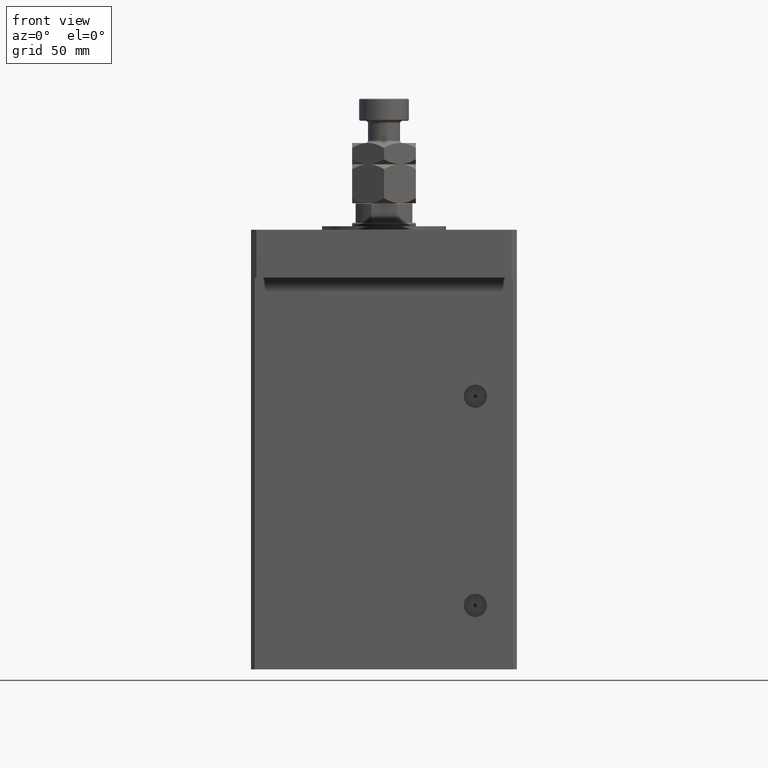
[diagram: clean part render]
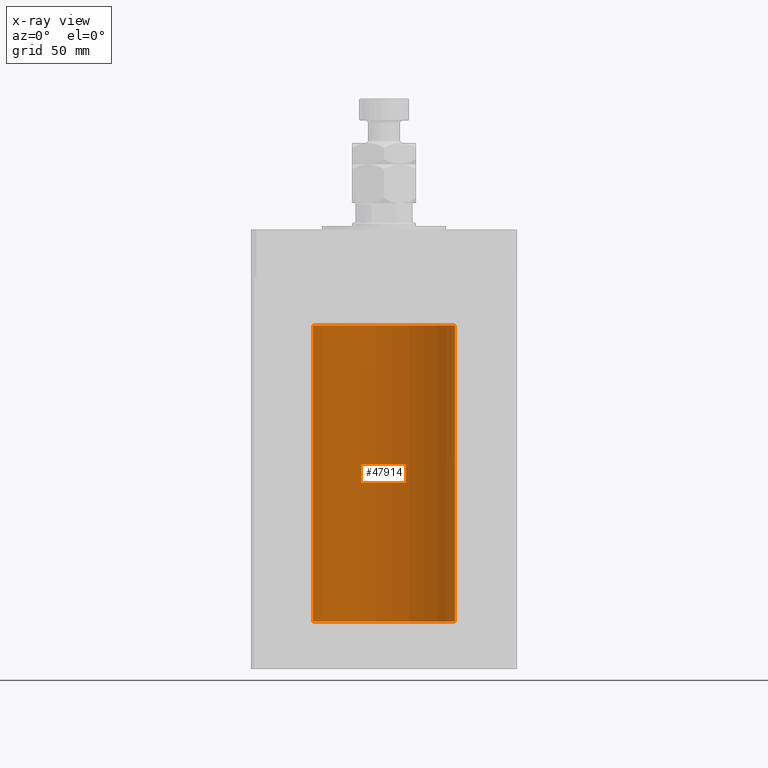
[diagram: x-ray — body ghosted, one internal face saturated and labeled with its STEP entity id]
A machine part, front view, then the same camera in x-ray: the body is ghosted and one INTERNAL B-rep face — a face not visible from any outside direction — is saturated and labeled: STEP entity #47914.
In plain terms, the highlighted cylindrical surface (partial cylindrical patch) has radius 40 mm, axis along (-0, -0, -1).
Its self-contained STEP definition (entity closure, byte-faithful):
#427 = VECTOR ( 'NONE', #17408, 1000.000000000000000 ) ;
#3168 = CIRCLE ( 'NONE', #52268, 40.00000000000000000 ) ;
#5087 = DIRECTION ( 'NONE',  ( -1.000000000000000000, 0.000000000000000000, 0.000000000000000000 ) ) ;
#11237 = DIRECTION ( 'NONE',  ( -0.000000000000000000, -0.000000000000000000, -1.000000000000000000 ) ) ;
#11301 = DIRECTION ( 'NONE',  ( -0.000000000000000000, 0.000000000000000000, 1.000000000000000000 ) ) ;
#11404 = CARTESIAN_POINT ( 'NONE',  ( -40.00000000000000000, 0.000000000000000000, 0.000000000000000000 ) ) ;
#11891 = EDGE_CURVE ( 'NONE', #47210, #55047, #32480, .T. ) ;
#13254 = DIRECTION ( 'NONE',  ( 1.000000000000000000, 0.000000000000000000, 0.000000000000000000 ) ) ;
#17369 = CIRCLE ( 'NONE', #53949, 40.00000000000000000 ) ;
#17408 = DIRECTION ( 'NONE',  ( -0.000000000000000000, -0.000000000000000000, -1.000000000000000000 ) ) ;
#17583 = ORIENTED_EDGE ( 'NONE', *, *, #53069, .F. ) ;
#17678 = FACE_OUTER_BOUND ( 'NONE', #37596, .T. ) ;
#17979 = LINE ( 'NONE', #26078, #427 ) ;
#20521 = CARTESIAN_POINT ( 'NONE',  ( 0.000000000000000000, 0.000000000000000000, 0.000000000000000000 ) ) ;
#22973 = EDGE_CURVE ( 'NONE', #41907, #40154, #17979, .T. ) ;
#26078 = CARTESIAN_POINT ( 'NONE',  ( 40.00000000000000000, 4.898587196589412237E-15, 167.0000000000000000 ) ) ;
#26402 = CARTESIAN_POINT ( 'NONE',  ( 0.000000000000000000, 0.000000000000000000, 167.0000000000000000 ) ) ;
#27974 = ORIENTED_EDGE ( 'NONE', *, *, #51036, .T. ) ;
#29659 = AXIS2_PLACEMENT_3D ( 'NONE', #51182, #30247, #5087 ) ;
#30247 = DIRECTION ( 'NONE',  ( -0.000000000000000000, -0.000000000000000000, -1.000000000000000000 ) ) ;
#30523 = CYLINDRICAL_SURFACE ( 'NONE', #29659, 40.00000000000000000 ) ;
#32480 = LINE ( 'NONE', #49506, #46987 ) ;
#33359 = DIRECTION ( 'NONE',  ( 1.000000000000000000, 0.000000000000000000, 0.000000000000000000 ) ) ;
#35762 = ORIENTED_EDGE ( 'NONE', *, *, #11891, .T. ) ;
#37596 = EDGE_LOOP ( 'NONE', ( #49625, #27974, #35762, #17583 ) ) ;
#40154 = VERTEX_POINT ( 'NONE', #47399 ) ;
#41907 = VERTEX_POINT ( 'NONE', #54403 ) ;
#46987 = VECTOR ( 'NONE', #11237, 1000.000000000000000 ) ;
#47210 = VERTEX_POINT ( 'NONE', #54970 ) ;
#47399 = CARTESIAN_POINT ( 'NONE',  ( 40.00000000000000000, 4.898587196589412237E-15, 0.000000000000000000 ) ) ;
#47914 = ADVANCED_FACE ( 'NONE', ( #17678 ), #30523, .F. ) ;
#49506 = CARTESIAN_POINT ( 'NONE',  ( -40.00000000000000000, 0.000000000000000000, 167.0000000000000000 ) ) ;
#49625 = ORIENTED_EDGE ( 'NONE', *, *, #22973, .F. ) ;
#51036 = EDGE_CURVE ( 'NONE', #41907, #47210, #17369, .T. ) ;
#51182 = CARTESIAN_POINT ( 'NONE',  ( 0.000000000000000000, 0.000000000000000000, 167.0000000000000000 ) ) ;
#52268 = AXIS2_PLACEMENT_3D ( 'NONE', #20521, #11301, #33359 ) ;
#52363 = DIRECTION ( 'NONE',  ( -0.000000000000000000, 0.000000000000000000, 1.000000000000000000 ) ) ;
#53069 = EDGE_CURVE ( 'NONE', #40154, #55047, #3168, .T. ) ;
#53949 = AXIS2_PLACEMENT_3D ( 'NONE', #26402, #52363, #13254 ) ;
#54403 = CARTESIAN_POINT ( 'NONE',  ( 40.00000000000000000, 4.898587196589412237E-15, 167.0000000000000000 ) ) ;
#54970 = CARTESIAN_POINT ( 'NONE',  ( -40.00000000000000000, 0.000000000000000000, 167.0000000000000000 ) ) ;
#55047 = VERTEX_POINT ( 'NONE', #11404 ) ;